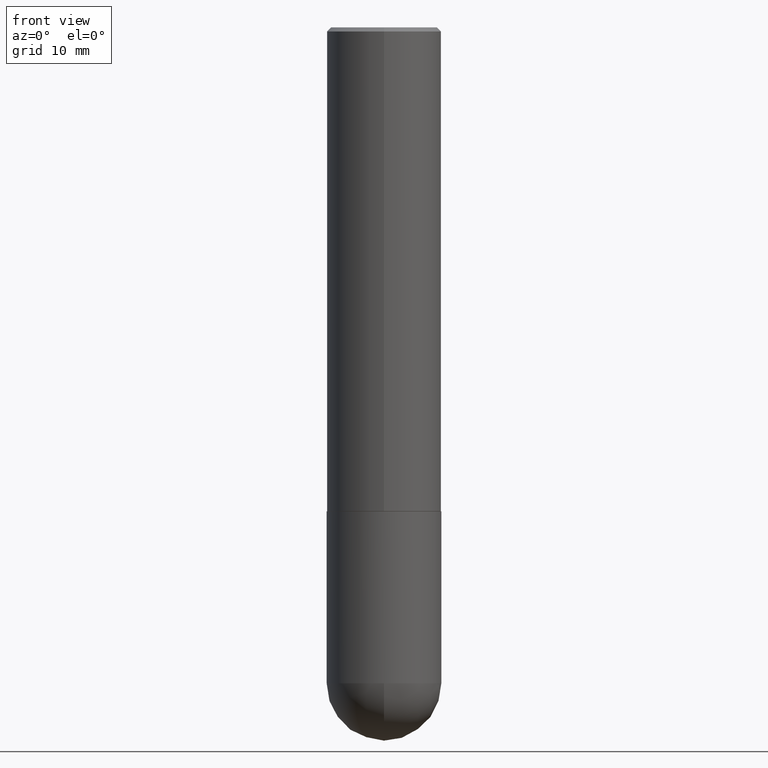
[diagram: clean part render]
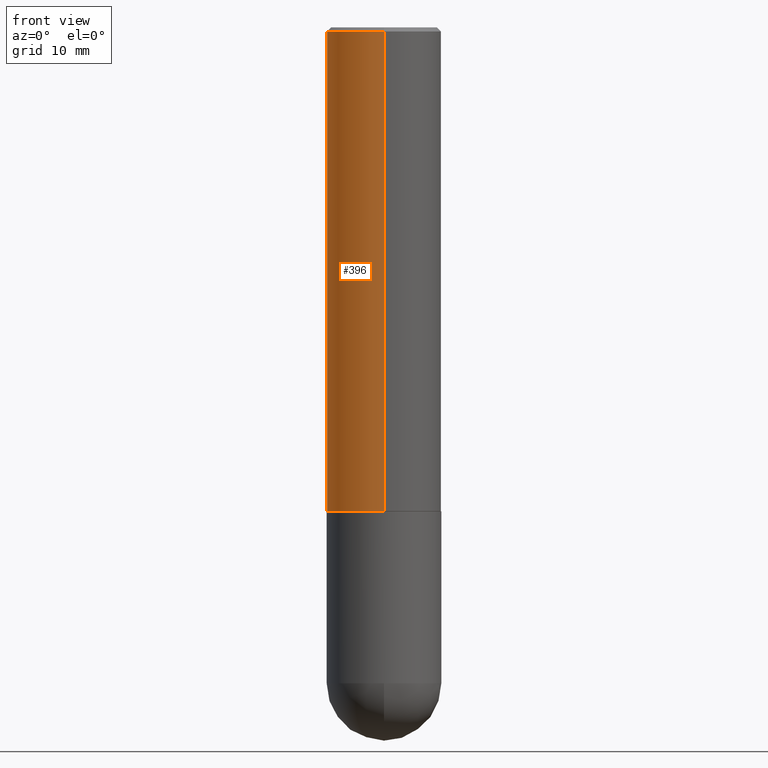
[diagram: same view with one face highlighted and labeled with its STEP entity id]
A machine part, front view. The second image highlights one B-rep face of the part: STEP entity #396.
In plain terms, the highlighted cylindrical surface (partial cylindrical patch) has radius 7.1438 mm, axis along (-0, 0, 1).
Its self-contained STEP definition (entity closure, byte-faithful):
#5 = AXIS2_PLACEMENT_3D ( 'NONE', #27, #259, #374 ) ;
#10 = VECTOR ( 'NONE', #120, 39.37007874015748143 ) ;
#20 = VERTEX_POINT ( 'NONE', #198 ) ;
#24 = CIRCLE ( 'NONE', #5, 0.2812500000000000555 ) ;
#27 = CARTESIAN_POINT ( 'NONE',  ( 4.890579930343684363E-31, -6.983474898706407953E-17, -0.02000000000000006287 ) ) ;
#56 = DIRECTION ( 'NONE',  ( -6.982962677686265133E-15, -1.000000000000000000, 3.885294924322502955E-15 ) ) ;
#69 = CARTESIAN_POINT ( 'NONE',  ( 0.000000000000000000, 0.000000000000000000, 0.000000000000000000 ) ) ;
#103 = FACE_OUTER_BOUND ( 'NONE', #287, .T. ) ;
#114 = ORIENTED_EDGE ( 'NONE', *, *, #292, .F. ) ;
#120 = DIRECTION ( 'NONE',  ( -2.445289965171834089E-29, 3.491737449353193105E-15, 1.000000000000000000 ) ) ;
#127 = AXIS2_PLACEMENT_3D ( 'NONE', #69, #162, #294 ) ;
#139 = EDGE_CURVE ( 'NONE', #224, #195, #209, .T. ) ;
#155 = VERTEX_POINT ( 'NONE', #157 ) ;
#157 = CARTESIAN_POINT ( 'NONE',  ( 1.963958253099263301E-15, 0.2812499999999999445, -0.02000000000000104472 ) ) ;
#161 = ORIENTED_EDGE ( 'NONE', *, *, #241, .F. ) ;
#162 = DIRECTION ( 'NONE',  ( -2.445289965171834089E-29, 3.491737449353193105E-15, 1.000000000000000000 ) ) ;
#178 = VECTOR ( 'NONE', #366, 39.37007874015748143 ) ;
#179 = ORIENTED_EDGE ( 'NONE', *, *, #239, .T. ) ;
#194 = CYLINDRICAL_SURFACE ( 'NONE', #127, 0.2812500000000001665 ) ;
#195 = VERTEX_POINT ( 'NONE', #255 ) ;
#198 = CARTESIAN_POINT ( 'NONE',  ( -1.929515061873242857E-15, -0.2812500000000001110, -0.01999999999999908101 ) ) ;
#199 = AXIS2_PLACEMENT_3D ( 'NONE', #219, #346, #56 ) ;
#209 = CIRCLE ( 'NONE', #199, 0.2812500000000003331 ) ;
#219 = CARTESIAN_POINT ( 'NONE',  ( 5.805118377317934048E-29, -8.289384704764479021E-15, -2.373999999999999666 ) ) ;
#224 = VERTEX_POINT ( 'NONE', #408 ) ;
#239 = EDGE_CURVE ( 'NONE', #195, #20, #284, .T. ) ;
#241 = EDGE_CURVE ( 'NONE', #155, #20, #24, .T. ) ;
#245 = CARTESIAN_POINT ( 'NONE',  ( -1.963958253099263696E-15, -0.2812500000000001665, 9.820511576305861032E-16 ) ) ;
#250 = LINE ( 'NONE', #399, #10 ) ;
#255 = CARTESIAN_POINT ( 'NONE',  ( -1.963958253099206503E-15, -0.2812500000000086042, -2.373999999999998334 ) ) ;
#259 = DIRECTION ( 'NONE',  ( -2.445289965171834089E-29, 3.491737449353193105E-15, 1.000000000000000000 ) ) ;
#284 = LINE ( 'NONE', #245, #178 ) ;
#287 = EDGE_LOOP ( 'NONE', ( #114, #409, #179, #161 ) ) ;
#292 = EDGE_CURVE ( 'NONE', #224, #155, #250, .T. ) ;
#294 = DIRECTION ( 'NONE',  ( -6.982962677686266711E-15, -1.000000000000000000, 3.491737449353193105E-15 ) ) ;
#346 = DIRECTION ( 'NONE',  ( -2.445289965171834089E-29, 3.491737449353193105E-15, 1.000000000000000000 ) ) ;
#366 = DIRECTION ( 'NONE',  ( -2.445289965171834089E-29, 3.491737449353193105E-15, 1.000000000000000000 ) ) ;
#374 = DIRECTION ( 'NONE',  ( -6.982962677686265133E-15, -1.000000000000000000, 3.490694658571002410E-15 ) ) ;
#396 = ADVANCED_FACE ( 'NONE', ( #103 ), #194, .T. ) ;
#399 = CARTESIAN_POINT ( 'NONE',  ( 1.998401444325282956E-15, 0.2812500000000001665, -9.820511576305861032E-16 ) ) ;
#408 = CARTESIAN_POINT ( 'NONE',  ( 1.998401444325312538E-15, 0.2812499999999920064, -2.374000000000000554 ) ) ;
#409 = ORIENTED_EDGE ( 'NONE', *, *, #139, .T. ) ;